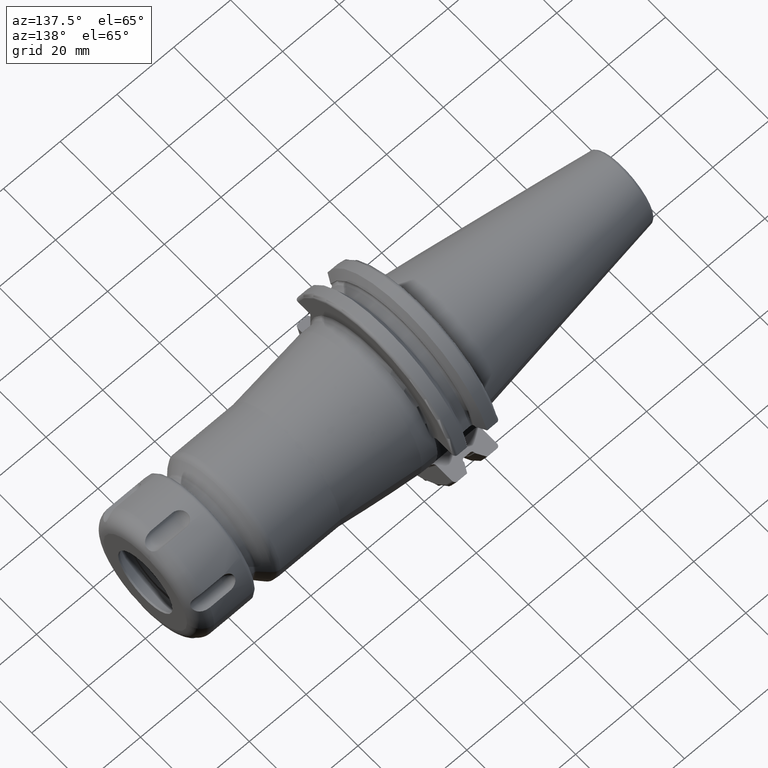
[diagram: clean part render]
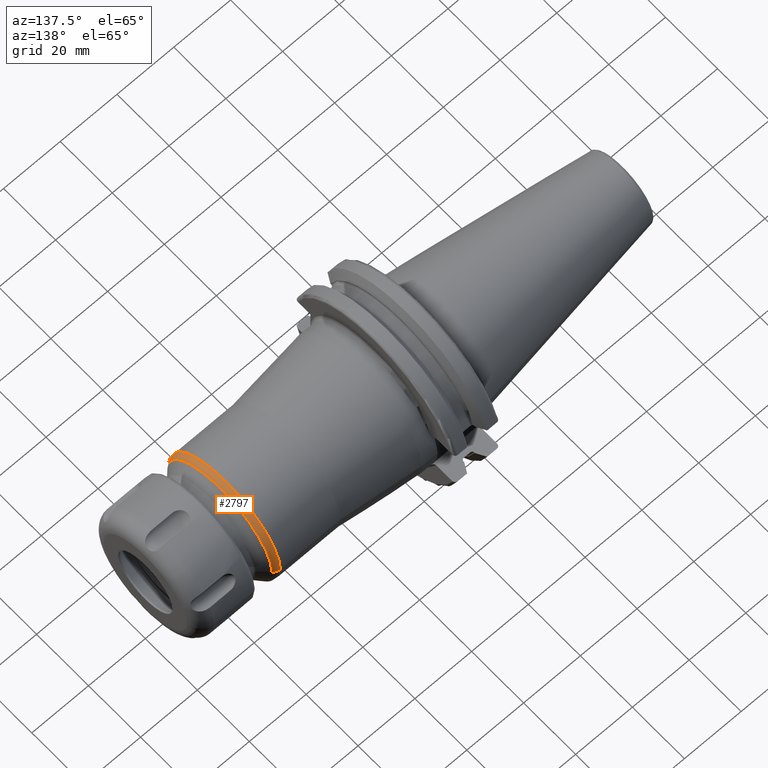
[diagram: same view with one face highlighted and labeled with its STEP entity id]
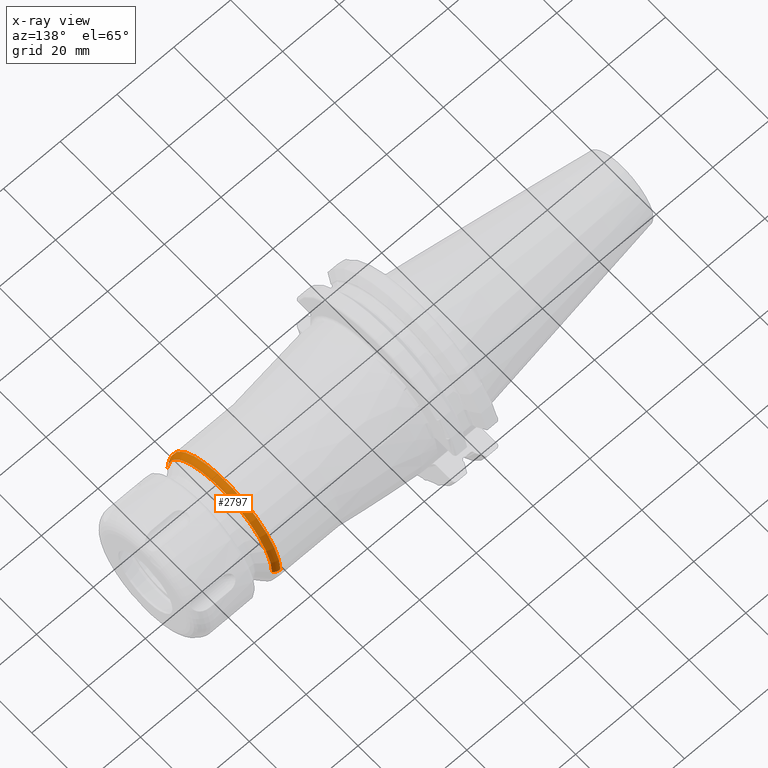
[diagram: x-ray of the same camera — body ghosted, the highlighted face saturated]
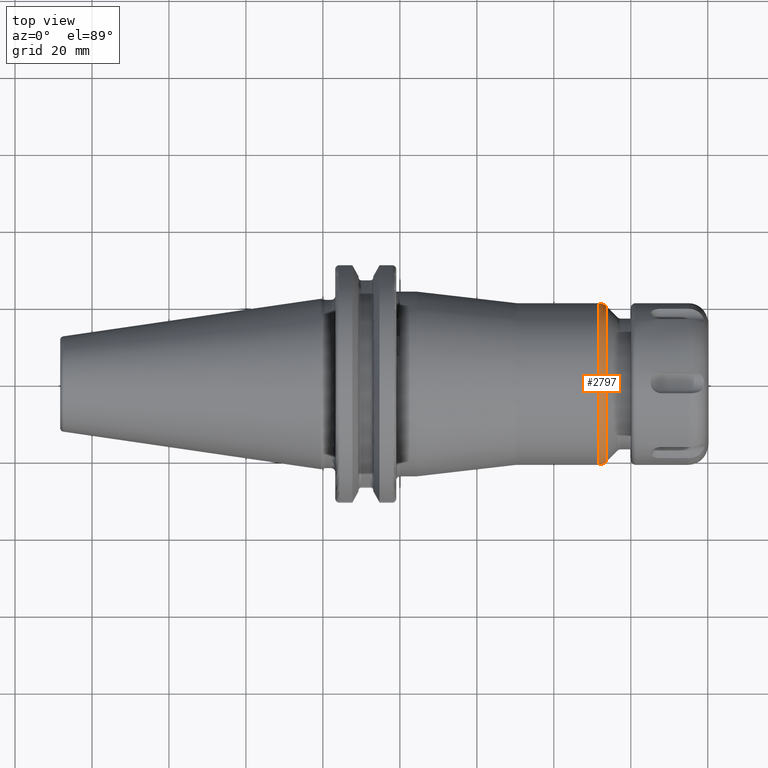
[diagram: same view with one face highlighted and labeled with its STEP entity id]
A machine part, auxiliary view. The second image highlights one B-rep face of the part: STEP entity #2797.
The next image is the same camera in x-ray: the body ghosted, the highlighted face saturated — about 0% of this face is hidden behind the body in this view.
A second angle (top view) of the same face is appended — the face is thin or edge-on in the first view.
In plain terms, the highlighted toroidal blend (fillet) surface has major radius 18 mm and minor (blend) radius 3 mm.
Its self-contained STEP definition (entity closure, byte-faithful):
#1049=CARTESIAN_POINT('',(7.163735931288E1,1.8E1,6.196063107033E-11));
#1050=DIRECTION('',(0.E0,3.442257763553E-12,-1.E0));
#1051=DIRECTION('',(1.894780628694E-14,1.E0,3.442257763553E-12));
#1052=AXIS2_PLACEMENT_3D('',#1049,#1050,#1051);
#1054=CARTESIAN_POINT('',(7.163735931288E1,-1.8E1,-6.195702284550E-11));
#1055=DIRECTION('',(0.E0,-3.442057402991E-12,1.E0));
#1056=DIRECTION('',(1.894780628694E-14,-1.E0,-3.442057402991E-12));
#1057=AXIS2_PLACEMENT_3D('',#1054,#1055,#1056);
#1059=CARTESIAN_POINT('',(7.163735931288E1,0.E0,0.E0));
#1060=DIRECTION('',(-1.E0,0.E0,0.E0));
#1061=DIRECTION('',(0.E0,-1.E0,0.E0));
#1062=AXIS2_PLACEMENT_3D('',#1059,#1060,#1061);
#1069=CARTESIAN_POINT('',(7.375867965644E1,0.E0,0.E0));
#1070=DIRECTION('',(-1.E0,0.E0,0.E0));
#1071=DIRECTION('',(0.E0,-1.E0,0.E0));
#1072=AXIS2_PLACEMENT_3D('',#1069,#1070,#1071);
#1600=CARTESIAN_POINT('',(7.163735931288E1,2.1E1,0.E0));
#1601=CARTESIAN_POINT('',(7.163735931288E1,-2.1E1,0.E0));
#1602=VERTEX_POINT('',#1600);
#1603=VERTEX_POINT('',#1601);
#1604=CARTESIAN_POINT('',(7.375867965644E1,2.012132034356E1,0.E0));
#1605=CARTESIAN_POINT('',(7.375867965644E1,-2.012132034356E1,0.E0));
#1606=VERTEX_POINT('',#1604);
#1607=VERTEX_POINT('',#1605);
#2784=CARTESIAN_POINT('',(7.163735931288E1,0.E0,0.E0));
#2785=DIRECTION('',(1.E0,0.E0,0.E0));
#2786=DIRECTION('',(0.E0,-9.999752152794E-1,-7.040513262277E-3));
#2787=AXIS2_PLACEMENT_3D('',#2784,#2785,#2786);
#2788=TOROIDAL_SURFACE('',#2787,1.8E1,3.E0);
#2790=ORIENTED_EDGE('',*,*,#2789,.T.);
#2791=ORIENTED_EDGE('',*,*,#2779,.T.);
#2793=ORIENTED_EDGE('',*,*,#2792,.F.);
#2794=ORIENTED_EDGE('',*,*,#2775,.F.);
#2795=EDGE_LOOP('',(#2790,#2791,#2793,#2794));
#2796=FACE_OUTER_BOUND('',#2795,.F.);
#2797=ADVANCED_FACE('',(#2796),#2788,.T.);
#1053=CIRCLE('',#1052,3.E0);
#1058=CIRCLE('',#1057,3.E0);
#1063=CIRCLE('',#1062,2.1E1);
#1073=CIRCLE('',#1072,2.012132034356E1);
#2775=EDGE_CURVE('',#1603,#1607,#1058,.T.);
#2779=EDGE_CURVE('',#1602,#1606,#1053,.T.);
#2789=EDGE_CURVE('',#1603,#1602,#1063,.T.);
#2792=EDGE_CURVE('',#1607,#1606,#1073,.T.);